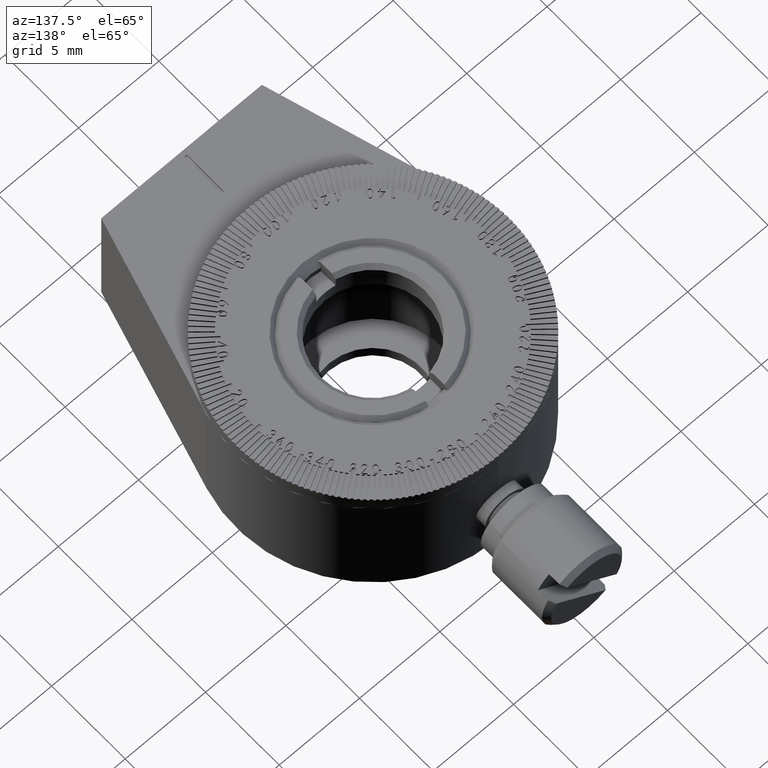
[diagram: clean part render]
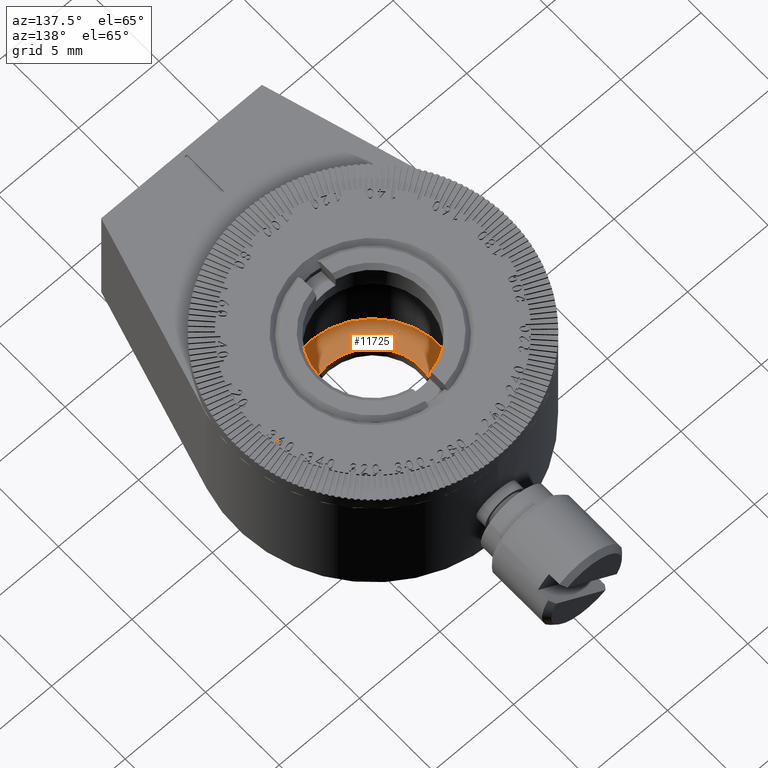
[diagram: same view with one face highlighted and labeled with its STEP entity id]
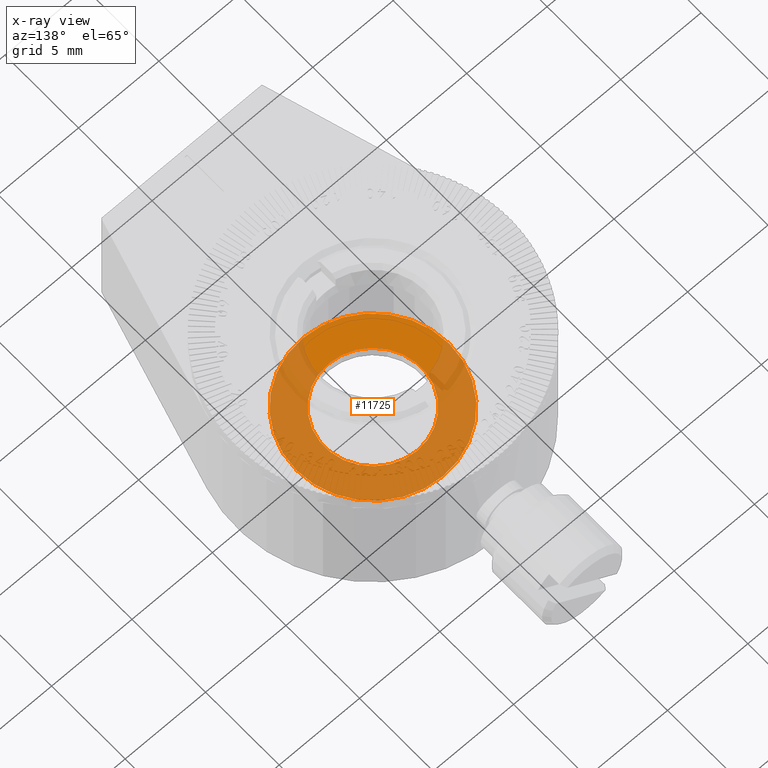
[diagram: x-ray of the same camera — body ghosted, the highlighted face saturated]
A machine part, auxiliary view. The second image highlights one B-rep face of the part: STEP entity #11725.
The next image is the same camera in x-ray: the body ghosted, the highlighted face saturated — about 72% of this face is hidden behind the body in this view.
In plain terms, the highlighted planar face has unit normal (0, -0, -1).
Its self-contained STEP definition (entity closure, byte-faithful):
#1780 = CARTESIAN_POINT ( 'NONE',  ( 0.000000000000000000, -7.200000000000000178, 0.000000000000000000 ) ) ;
#3986 = CARTESIAN_POINT ( 'NONE',  ( 0.000000000000000000, -7.200000000000000178, 0.000000000000000000 ) ) ;
#5255 = CARTESIAN_POINT ( 'NONE',  ( 0.000000000000000000, -7.200000000000000178, 0.000000000000000000 ) ) ;
#5658 = AXIS2_PLACEMENT_3D ( 'NONE', #26158, #15922, #17179 ) ;
#6087 = EDGE_LOOP ( 'NONE', ( #53676, #14577 ) ) ;
#7204 = VERTEX_POINT ( 'NONE', #31863 ) ;
#8802 = FACE_BOUND ( 'NONE', #6087, .T. ) ;
#8909 = DIRECTION ( 'NONE',  ( 0.000000000000000000, 0.000000000000000000, 1.000000000000000000 ) ) ;
#9219 = CARTESIAN_POINT ( 'NONE',  ( 0.000000000000000000, -7.200000000000000178, 0.000000000000000000 ) ) ;
#11725 = ADVANCED_FACE ( 'NONE', ( #8802, #17758 ), #18076, .F. ) ;
#14117 = VERTEX_POINT ( 'NONE', #35585 ) ;
#14577 = ORIENTED_EDGE ( 'NONE', *, *, #16767, .F. ) ;
#15019 = EDGE_CURVE ( 'NONE', #7204, #43493, #28137, .T. ) ;
#15922 = DIRECTION ( 'NONE',  ( 0.000000000000000000, 1.000000000000000000, 0.000000000000000000 ) ) ;
#16631 = CIRCLE ( 'NONE', #52371, 3.000000000000000444 ) ;
#16767 = EDGE_CURVE ( 'NONE', #14117, #31437, #47653, .T. ) ;
#17179 = DIRECTION ( 'NONE',  ( 0.000000000000000000, 0.000000000000000000, 1.000000000000000000 ) ) ;
#17758 = FACE_OUTER_BOUND ( 'NONE', #51321, .T. ) ;
#18076 = PLANE ( 'NONE',  #43879 ) ;
#18489 = DIRECTION ( 'NONE',  ( 0.000000000000000000, 1.000000000000000000, 0.000000000000000000 ) ) ;
#23510 = DIRECTION ( 'NONE',  ( 0.000000000000000000, -1.000000000000000000, 0.000000000000000000 ) ) ;
#26158 = CARTESIAN_POINT ( 'NONE',  ( 0.000000000000000000, -7.200000000000000178, 0.000000000000000000 ) ) ;
#26715 = DIRECTION ( 'NONE',  ( 0.000000000000000000, 1.000000000000000000, 0.000000000000000000 ) ) ;
#28137 = CIRCLE ( 'NONE', #5658, 4.750000000000000888 ) ;
#31174 = CARTESIAN_POINT ( 'NONE',  ( 0.000000000000000000, -7.200000000000000178, 3.000000000000000444 ) ) ;
#31437 = VERTEX_POINT ( 'NONE', #31174 ) ;
#31863 = CARTESIAN_POINT ( 'NONE',  ( 5.817072295949928412E-16, -7.200000000000000178, 4.750000000000000888 ) ) ;
#32896 = CARTESIAN_POINT ( 'NONE',  ( 0.000000000000000000, -7.200000000000000178, -4.750000000000000888 ) ) ;
#35585 = CARTESIAN_POINT ( 'NONE',  ( 3.673940397442060361E-16, -7.200000000000000178, -3.000000000000000444 ) ) ;
#36797 = ORIENTED_EDGE ( 'NONE', *, *, #15019, .T. ) ;
#42699 = DIRECTION ( 'NONE',  ( 0.000000000000000000, -0.000000000000000000, -1.000000000000000000 ) ) ;
#43493 = VERTEX_POINT ( 'NONE', #32896 ) ;
#43879 = AXIS2_PLACEMENT_3D ( 'NONE', #3986, #23510, #42699 ) ;
#45596 = ORIENTED_EDGE ( 'NONE', *, *, #62455, .T. ) ;
#45900 = DIRECTION ( 'NONE',  ( 0.000000000000000000, 0.000000000000000000, 1.000000000000000000 ) ) ;
#47302 = CIRCLE ( 'NONE', #55494, 4.750000000000000888 ) ;
#47653 = CIRCLE ( 'NONE', #48665, 3.000000000000000444 ) ;
#47820 = DIRECTION ( 'NONE',  ( 0.000000000000000000, 0.000000000000000000, 1.000000000000000000 ) ) ;
#48665 = AXIS2_PLACEMENT_3D ( 'NONE', #1780, #26715, #45900 ) ;
#51321 = EDGE_LOOP ( 'NONE', ( #45596, #36797 ) ) ;
#52371 = AXIS2_PLACEMENT_3D ( 'NONE', #5255, #63174, #47820 ) ;
#53676 = ORIENTED_EDGE ( 'NONE', *, *, #61665, .F. ) ;
#55494 = AXIS2_PLACEMENT_3D ( 'NONE', #9219, #18489, #8909 ) ;
#61665 = EDGE_CURVE ( 'NONE', #31437, #14117, #16631, .T. ) ;
#62455 = EDGE_CURVE ( 'NONE', #43493, #7204, #47302, .T. ) ;
#63174 = DIRECTION ( 'NONE',  ( 0.000000000000000000, 1.000000000000000000, 0.000000000000000000 ) ) ;